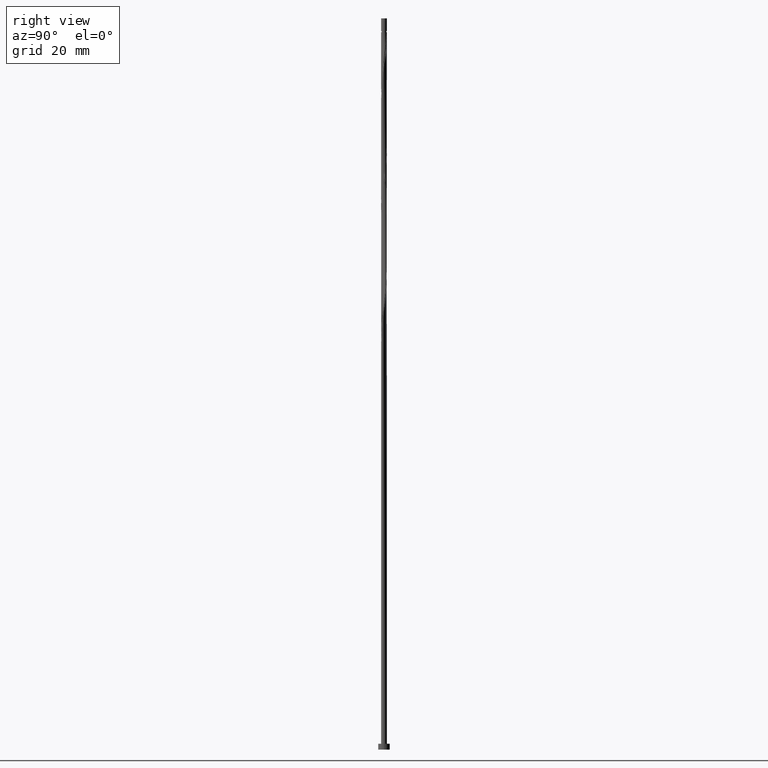
[diagram: clean part render]
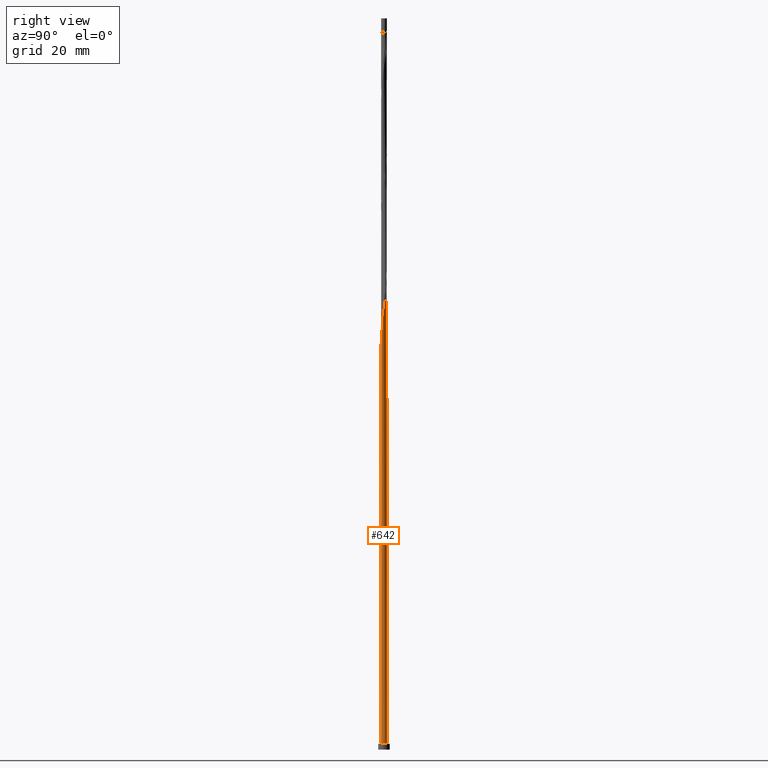
[diagram: same view with one face highlighted and labeled with its STEP entity id]
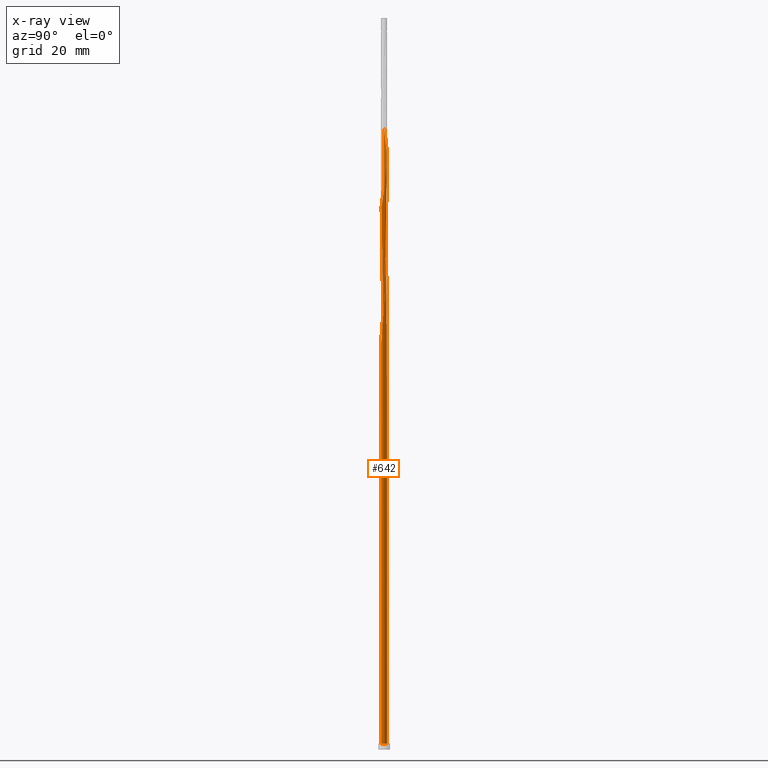
[diagram: x-ray of the same camera — body ghosted, the highlighted face saturated]
A machine part, right view. The second image highlights one B-rep face of the part: STEP entity #642.
The next image is the same camera in x-ray: the body ghosted, the highlighted face saturated — about 0% of this face is hidden behind the body in this view.
In plain terms, the highlighted cylindrical surface (bore or boss wall) has radius 1 mm, axis along (-0, -0, -1).
Its self-contained STEP definition (entity closure, byte-faithful):
#5 = CARTESIAN_POINT ( 'NONE',  ( -0.1626326816669503295, -0.9941297243636999514, 180.3694312571459477 ) ) ;
#12 = ORIENTED_EDGE ( 'NONE', *, *, #198, .T. ) ;
#21 = CARTESIAN_POINT ( 'NONE',  ( 0.2792251842758189939, 0.9602256487233287174, 200.4014825391972749 ) ) ;
#27 = CARTESIAN_POINT ( 'NONE',  ( -1.000000000000000000, 0.000000000000000000, 2.000000000000000000 ) ) ;
#38 = ORIENTED_EDGE ( 'NONE', *, *, #546, .F. ) ;
#39 = CARTESIAN_POINT ( 'NONE',  ( -1.000000000000001554, -6.206714491314109161E-16, 132.0178659535507109 ) ) ;
#57 = VECTOR ( 'NONE', #1188, 1000.000000000000000 ) ;
#58 = DIRECTION ( 'NONE',  ( 0.000000000000000000, 1.000000000000000000, -2.775557561562891351E-14 ) ) ;
#82 = VERTEX_POINT ( 'NONE', #27 ) ;
#87 = CARTESIAN_POINT ( 'NONE',  ( -0.7809622556878470512, -0.6362713675787865508, 133.8950722827869697 ) ) ;
#96 = CARTESIAN_POINT ( 'NONE',  ( -0.1626326816669503295, -0.9941297243636999514, 138.7027645904792621 ) ) ;
#110 = CARTESIAN_POINT ( 'NONE',  ( 0.7988119632698938988, -0.6015807903656001931, 145.9143030520177717 ) ) ;
#123 = CARTESIAN_POINT ( 'NONE',  ( 0.2792251842758189939, 0.9602256487233287174, 158.7348158725305609 ) ) ;
#132 = CARTESIAN_POINT ( 'NONE',  ( -0.9488682001031722990, -0.3156725183365958753, 173.1578927956074949 ) ) ;
#138 = CARTESIAN_POINT ( 'NONE',  ( 0.9672781958313422246, -0.2812760030270856637, 189.9848158725305609 ) ) ;
#139 = AXIS2_PLACEMENT_3D ( 'NONE', #1639, #1235, #58 ) ;
#145 = CARTESIAN_POINT ( 'NONE',  ( -0.3179910309791545986, 0.9558373304210522337, 162.7412261289408377 ) ) ;
#154 = EDGE_CURVE ( 'NONE', #559, #649, #308, .T. ) ;
#162 =( BOUNDED_CURVE ( )  B_SPLINE_CURVE ( 2, ( #325, #1114, #748, #992, #1012, #630, #625, #650, #361, #242, #616, #874, #1137, #1679, #1283, #1671, #1551 ),
 .UNSPECIFIED., .F., .T. ) 
 B_SPLINE_CURVE_WITH_KNOTS ( ( 3, 2, 2, 2, 2, 2, 2, 2, 3 ),
 ( 0.9295271625973828833, 0.9326923076923077094, 0.9423076923076922906, 0.9519230769230768718, 0.9615384615384615641, 0.9711538461538461453, 0.9807692307692307265, 0.9903846153846154188, 1.000000000000000000 ),
 .UNSPECIFIED. ) 
 CURVE ( )  GEOMETRIC_REPRESENTATION_ITEM ( )  RATIONAL_B_SPLINE_CURVE ( ( 0.9061636035682636425, 0.9069090390690521808, 0.9090909090909090606, 0.9024626128164124905, 0.9090909090909090606, 0.9024626128164124905, 0.9090909090909090606, 0.9024626128164124905, 0.9090909090909090606, 0.9024626128164124905, 0.9090909090909090606, 0.9024626128164124905, 0.9090909090909090606, 0.9024626128164124905, 0.9090909090909090606, 0.9024626128164124905, 0.9090909090909090606 ) ) 
 REPRESENTATION_ITEM ( '' )  );
#168 = CARTESIAN_POINT ( 'NONE',  ( -0.9195676458679213905, 0.3929317302953934665, 126.6835338212484743 ) ) ;
#177 = CARTESIAN_POINT ( 'NONE',  ( -0.9195676458679213905, 0.3929317302953934665, 210.0168671545818313 ) ) ;
#184 = DIRECTION ( 'NONE',  ( -1.000000000000000000, 0.000000000000000000, 0.000000000000000000 ) ) ;
#185 = CARTESIAN_POINT ( 'NONE',  ( -0.8718570959045004454, 0.5045874575637019355, 209.2155851032997305 ) ) ;
#194 = VERTEX_POINT ( 'NONE', #318 ) ;
#196 = DIRECTION ( 'NONE',  ( -0.000000000000000000, -0.000000000000000000, -1.000000000000000000 ) ) ;
#198 = EDGE_CURVE ( 'NONE', #299, #390, #1092, .T. ) ;
#200 = DIRECTION ( 'NONE',  ( 0.000000000000000000, 0.000000000000000000, 1.000000000000000000 ) ) ;
#212 = CARTESIAN_POINT ( 'NONE',  ( -0.9871977833283672732, -0.2004590596635320576, 130.6899440776587369 ) ) ;
#222 = CARTESIAN_POINT ( 'NONE',  ( -0.5009084468820621527, -0.8655002760497555458, 136.2989184366330733 ) ) ;
#236 = CARTESIAN_POINT ( 'NONE',  ( -0.9105386168779776579, -0.4308859770096599151, 173.9591748468895105 ) ) ;
#242 = CARTESIAN_POINT ( 'NONE',  ( -0.6059992068794372022, 0.8046789790165538303, 125.8822517699664729 ) ) ;
#243 = CARTESIAN_POINT ( 'NONE',  ( 0.9871977833283672732, 0.2004590596635319188, 151.5232774109920797 ) ) ;
#251 = CARTESIAN_POINT ( 'NONE',  ( -0.5009084468820621527, -0.8655002760497555458, 177.9655851032997873 ) ) ;
#259 = CARTESIAN_POINT ( 'NONE',  ( 0.9672781958313422246, -0.2812760030270856637, 148.3181492058638753 ) ) ;
#269 = CARTESIAN_POINT ( 'NONE',  ( 0.7257668306352880183, -0.6985741231674980067, 145.1130210007356993 ) ) ;
#283 = CARTESIAN_POINT ( 'NONE',  ( -0.08000394386352392695, 1.004162669578944067, 202.8053286930433217 ) ) ;
#289 = CARTESIAN_POINT ( 'NONE',  ( -0.1989974874213394362, 0.9799999999999983169, 120.2732774109920797 ) ) ;
#299 = VERTEX_POINT ( 'NONE', #589 ) ;
#300 = CARTESIAN_POINT ( 'NONE',  ( -0.7257668306352880183, 0.6985741231674977847, 207.6130210007356709 ) ) ;
#302 = CARTESIAN_POINT ( 'NONE',  ( 0.000000000000000000, 0.000000000000000000, 2.000000000000000000 ) ) ;
#308 = LINE ( 'NONE', #834, #445 ) ;
#312 = CARTESIAN_POINT ( 'NONE',  ( 0.7809622556878473842, 0.6362713675787859957, 196.3950722827869129 ) ) ;
#318 = CARTESIAN_POINT ( 'NONE',  ( 1.000000000000000000, 0.000000000000000000, 2.000000000000000000 ) ) ;
#325 = CARTESIAN_POINT ( 'NONE',  ( -1.000000000000001554, -6.206714491314109161E-16, 132.0178659535507109 ) ) ;
#333 = CARTESIAN_POINT ( 'NONE',  ( -0.3179910309791545986, 0.9558373304210522337, 121.0745594622741237 ) ) ;
#336 = CARTESIAN_POINT ( 'NONE',  ( 0.1989974874213394362, -0.9799999999999983169, 141.1066107443254793 ) ) ;
#343 = CARTESIAN_POINT ( 'NONE',  ( -0.9868813993804974594, 0.1614469063091454326, 128.2860979238126049 ) ) ;
#354 = CARTESIAN_POINT ( 'NONE',  ( -0.6934807312836420712, -0.7204751732976698575, 134.6963543340690137 ) ) ;
#356 = EDGE_CURVE ( 'NONE', #82, #194, #1005, .T. ) ;
#361 = CARTESIAN_POINT ( 'NONE',  ( -0.6934807312836421822, 0.7204751732976701906, 126.6835338212485027 ) ) ;
#370 = CARTESIAN_POINT ( 'NONE',  ( 0.7257668306352880183, -0.6985741231674980067, 186.7796876674022997 ) ) ;
#376 = CARTESIAN_POINT ( 'NONE',  ( 0.7809622556878473842, 0.6362713675787859957, 154.7284056161203125 ) ) ;
#385 = CARTESIAN_POINT ( 'NONE',  ( -0.8718570959045004454, 0.5045874575637019355, 167.5489184366331017 ) ) ;
#390 = VERTEX_POINT ( 'NONE', #963 ) ;
#396 = CARTESIAN_POINT ( 'NONE',  ( 0.9195676458679213905, -0.3929317302953934665, 147.5168671545818029 ) ) ;
#397 = AXIS2_PLACEMENT_3D ( 'NONE', #1558, #200, #618 ) ;
#404 = CARTESIAN_POINT ( 'NONE',  ( 0.5009084468820622638, 0.8655002760497554348, 157.1322517699664729 ) ) ;
#414 = CARTESIAN_POINT ( 'NONE',  ( -1.000000000000001332, 3.776374479654925961E-16, 212.6953555351000773 ) ) ;
#418 = CARTESIAN_POINT ( 'NONE',  ( -1.000000000000001554, 8.375325578640631106E-16, 129.3620222017668198 ) ) ;
#430 = EDGE_CURVE ( 'NONE', #649, #390, #162, .T. ) ;
#431 = CARTESIAN_POINT ( 'NONE',  ( 0.04131436890171372167, 0.9991461969713221203, 202.0040466417613061 ) ) ;
#445 = VECTOR ( 'NONE', #1511, 1000.000000000000000 ) ;
#494 = CARTESIAN_POINT ( 'NONE',  ( 0.3179910309791544876, -0.9558373304210522337, 141.9078927956074665 ) ) ;
#510 = CARTESIAN_POINT ( 'NONE',  ( 0.08000394386352403797, -1.004162669578944067, 181.9719953597099789 ) ) ;
#520 = CARTESIAN_POINT ( 'NONE',  ( 1.006484602929652361, -0.04161780959120545131, 149.9207133084279633 ) ) ;
#529 = LINE ( 'NONE', #673, #57 ) ;
#530 = CARTESIAN_POINT ( 'NONE',  ( 0.7988119632698938988, -0.6015807903656001931, 187.5809697186844005 ) ) ;
#536 = CARTESIAN_POINT ( 'NONE',  ( 0.9968411931290097616, 0.07942062503616280356, 192.3886620263766929 ) ) ;
#545 = CARTESIAN_POINT ( 'NONE',  ( 0.5374976352246441103, -0.8519621999464206397, 185.1771235648382401 ) ) ;
#546 = EDGE_CURVE ( 'NONE', #1276, #82, #529, .T. ) ;
#551 = CYLINDRICAL_SURFACE ( 'NONE', #929, 1.000000000000000000 ) ;
#559 = VERTEX_POINT ( 'NONE', #1032 ) ;
#560 = CARTESIAN_POINT ( 'NONE',  ( -0.5374976352246444433, 0.8519621999464206397, 206.0104568981716113 ) ) ;
#567 = CARTESIAN_POINT ( 'NONE',  ( 0.9105386168779777689, 0.4308859770096596375, 194.7925081802228817 ) ) ;
#578 = CARTESIAN_POINT ( 'NONE',  ( -0.9672781958313426687, 0.2812760030270850531, 210.8181492058639321 ) ) ;
#589 = CARTESIAN_POINT ( 'NONE',  ( -0.1989974874213394362, 0.9799999999999982059, 120.2732774109920797 ) ) ;
#591 = AXIS2_PLACEMENT_3D ( 'NONE', #302, #976, #828 ) ;
#616 = CARTESIAN_POINT ( 'NONE',  ( -0.5009084468820619307, 0.8655002760497556569, 125.0809697186844005 ) ) ;
#618 = DIRECTION ( 'NONE',  ( 1.000000000000000000, 0.000000000000000000, 0.000000000000000000 ) ) ;
#625 = CARTESIAN_POINT ( 'NONE',  ( -0.8457504362829123545, 0.5335786722942235105, 128.2860979238126049 ) ) ;
#626 = CARTESIAN_POINT ( 'NONE',  ( -0.04131436890171313187, -0.9991461969713221203, 139.5040466417613345 ) ) ;
#630 = CARTESIAN_POINT ( 'NONE',  ( -0.9105386168779776579, 0.4308859770096601927, 129.0873799750947057 ) ) ;
#640 = CARTESIAN_POINT ( 'NONE',  ( 0.9488682001031727431, 0.3156725183365953757, 152.3245594622740953 ) ) ;
#642 = ADVANCED_FACE ( 'NONE', ( #679 ), #551, .T. ) ;
#649 = VERTEX_POINT ( 'NONE', #39 ) ;
#650 = CARTESIAN_POINT ( 'NONE',  ( -0.7809622556878472732, 0.6362713675787868839, 127.4848158725305467 ) ) ;
#652 = CARTESIAN_POINT ( 'NONE',  ( -0.1989974874213393530, 0.9799999999999983169, 161.9399440776587937 ) ) ;
#659 = CARTESIAN_POINT ( 'NONE',  ( 0.3179910309791544876, -0.9558373304210522337, 183.5745594622741521 ) ) ;
#665 = CARTESIAN_POINT ( 'NONE',  ( 0.9868813993804974594, -0.1614469063091455159, 190.7860979238126049 ) ) ;
#673 = CARTESIAN_POINT ( 'NONE',  ( -1.000000000000000000, 0.000000000000000000, 250.0000000000000000 ) ) ;
#674 = CARTESIAN_POINT ( 'NONE',  ( -0.9968411931290097616, -0.07942062503616315050, 171.5553286930433501 ) ) ;
#679 = FACE_OUTER_BOUND ( 'NONE', #1489, .T. ) ;
#691 = EDGE_CURVE ( 'NONE', #299, #1276, #1334, .T. ) ;
#713 = CARTESIAN_POINT ( 'NONE',  ( -0.4277443331018996320, 0.9038997651837363811, 205.2091748468895389 ) ) ;
#721 = ORIENTED_EDGE ( 'NONE', *, *, #1604, .T. ) ;
#727 = CARTESIAN_POINT ( 'NONE',  ( -0.8457504362829123545, -0.5335786722942231775, 133.0937902315049257 ) ) ;
#748 = CARTESIAN_POINT ( 'NONE',  ( -0.9968411931290099837, 0.07942062503616346969, 131.4912261289407809 ) ) ;
#772 = CARTESIAN_POINT ( 'NONE',  ( -0.6316322329299663974, 0.7752681615569592122, 165.1450722827869697 ) ) ;
#776 = CARTESIAN_POINT ( 'NONE',  ( 0.9105386168779777689, 0.4308859770096596375, 153.1258415135561677 ) ) ;
#784 = CARTESIAN_POINT ( 'NONE',  ( -0.04131436890171313187, -0.9991461969713221203, 181.1707133084279917 ) ) ;
#791 = CARTESIAN_POINT ( 'NONE',  ( -0.8457504362829123545, -0.5335786722942231775, 174.7604568981714976 ) ) ;
#797 = CARTESIAN_POINT ( 'NONE',  ( 0.9968411931290097616, 0.07942062503616280356, 150.7219953597100641 ) ) ;
#812 = ORIENTED_EDGE ( 'NONE', *, *, #1650, .F. ) ;
#813 = CARTESIAN_POINT ( 'NONE',  ( -0.7988119632698941208, 0.6015807903656000821, 125.0809697186844005 ) ) ;
#828 = DIRECTION ( 'NONE',  ( 1.000000000000000000, 0.000000000000000000, 0.000000000000000000 ) ) ;
#834 = CARTESIAN_POINT ( 'NONE',  ( -1.000000000000000000, 0.000000000000000000, 250.0000000000000000 ) ) ;
#850 = CARTESIAN_POINT ( 'NONE',  ( -1.000000000000001110, -0.03977313033677723486, 129.6261931173998221 ) ) ;
#854 =( BOUNDED_CURVE ( )  B_SPLINE_CURVE ( 2, ( #993, #850, #977, #212, #1680, #1528, #727, #87, #354, #1414, #222, #1245, #1659, #96, #626, #1138, #336, #494, #999, #895, #888, #269, #110, #1316, #396, #259, #1435, #520, #797, #243, #640, #776, #1023, #376, #1295, #1593, #404, #1033, #123, #1177, #1704, #1302, #652, #145, #1578, #918, #772, #1568, #1166, #385, #1451, #1154, #903, #1445, #674, #1429, #132, #236, #791, #909, #1585, #1284, #251, #1694, #1190, #5, #784, #510, #1182, #659, #1713, #545, #1051, #370, #530, #1311, #1013, #138, #665, #1717, #536, #1042, #1459, #567, #1368, #312, #938, #1058, #1490, #1617, #21, #1476, #431, #283, #1467, #945, #713, #560, #1066, #300, #1483, #185, #177, #578, #1502, #1336, #414 ),
 .UNSPECIFIED., .F., .T. ) 
 B_SPLINE_CURVE_WITH_KNOTS ( ( 3, 2, 2, 2, 2, 2, 2, 2, 2, 2, 2, 2, 2, 2, 2, 2, 2, 2, 2, 2, 2, 2, 2, 2, 2, 2, 2, 2, 2, 2, 2, 2, 2, 2, 2, 2, 2, 2, 2, 2, 2, 2, 2, 2, 2, 2, 2, 2, 2, 2, 2, 2, 2, 3 ),
 ( 0.05452716259738280002, 0.05769230769230770939, 0.06730769230769229061, 0.07692307692307687184, 0.08653846153846156408, 0.09615384615384614531, 0.1057692307692307265, 0.1153846153846154188, 0.1250000000000000000, 0.1346153846153845812, 0.1442307692307692735, 0.1538461538461538547, 0.1634615384615384359, 0.1730769230769231282, 0.1826923076923077094, 0.1923076923076922906, 0.2019230769230768718, 0.2115384615384615641, 0.2211538461538461453, 0.2307692307692307265, 0.2403846153846154188, 0.2500000000000000000, 0.2596153846153845812, 0.2692307692307692735, 0.2788461538461538547, 0.2884615384615384359, 0.2980769230769231282, 0.3076923076923077094, 0.3173076923076922906, 0.3269230769230768718, 0.3365384615384615641, 0.3461538461538461453, 0.3557692307692307265, 0.3653846153846154188, 0.3750000000000000000, 0.3846153846153845812, 0.3942307692307692735, 0.4038461538461538547, 0.4134615384615384359, 0.4230769230769231282, 0.4326923076923077094, 0.4423076923076922906, 0.4519230769230768718, 0.4615384615384615641, 0.4711538461538461453, 0.4807692307692307265, 0.4903846153846154188, 0.5000000000000000000, 0.5096153846153845812, 0.5192307692307691624, 0.5288461538461538547, 0.5384615384615384359, 0.5480769230769231282, 0.5545271625973826612 ),
 .UNSPECIFIED. ) 
 CURVE ( )  GEOMETRIC_REPRESENTATION_ITEM ( )  RATIONAL_B_SPLINE_CURVE ( ( 0.9061636035682738566, 0.9069090390690623948, 0.9090909090909192747, 0.9024626128164228156, 0.9090909090909192747, 0.9024626128164228156, 0.9090909090909192747, 0.9024626128164228156, 0.9090909090909192747, 0.9024626128164228156, 0.9090909090909192747, 0.9024626128164228156, 0.9090909090909192747, 0.9024626128164228156, 0.9090909090909192747, 0.9024626128164228156, 0.9090909090909192747, 0.9024626128164228156, 0.9090909090909192747, 0.9024626128164228156, 0.9090909090909192747, 0.9024626128164228156, 0.9090909090909192747, 0.9024626128164228156, 0.9090909090909192747, 0.9024626128164228156, 0.9090909090909192747, 0.9024626128164228156, 0.9090909090909192747, 0.9024626128164228156, 0.9090909090909192747, 0.9024626128164228156, 0.9090909090909192747, 0.9024626128164228156, 0.9090909090909192747, 0.9024626128164228156, 0.9090909090909192747, 0.9024626128164228156, 0.9090909090909192747, 0.9024626128164228156, 0.9090909090909192747, 0.9024626128164228156, 0.9090909090909192747, 0.9024626128164228156, 0.9090909090909192747, 0.9024626128164228156, 0.9090909090909192747, 0.9024626128164228156, 0.9090909090909192747, 0.9024626128164228156, 0.9090909090909192747, 0.9024626128164228156, 0.9090909090909192747, 0.9024626128164228156, 0.9090909090909192747, 0.9024626128164228156, 0.9090909090909192747, 0.9024626128164228156, 0.9090909090909192747, 0.9024626128164228156, 0.9090909090909192747, 0.9024626128164228156, 0.9090909090909192747, 0.9024626128164228156, 0.9090909090909192747, 0.9024626128164228156, 0.9090909090909192747, 0.9024626128164228156, 0.9090909090909192747, 0.9024626128164228156, 0.9090909090909192747, 0.9024626128164228156, 0.9090909090909192747, 0.9024626128164228156, 0.9090909090909192747, 0.9024626128164228156, 0.9090909090909192747, 0.9024626128164228156, 0.9090909090909192747, 0.9024626128164228156, 0.9090909090909192747, 0.9024626128164228156, 0.9090909090909192747, 0.9024626128164228156, 0.9090909090909192747, 0.9024626128164228156, 0.9090909090909192747, 0.9024626128164228156, 0.9090909090909192747, 0.9024626128164228156, 0.9090909090909192747, 0.9024626128164228156, 0.9090909090909192747, 0.9024626128164228156, 0.9090909090909192747, 0.9024626128164228156, 0.9090909090909192747, 0.9024626128164228156, 0.9090909090909192747, 0.9024626128164228156, 0.9090909090909192747, 0.9024626128164228156, 0.9090909090909192747, 0.9024626128164228156, 0.9090909090909192747, 0.9046444828382798065, 0.9061636035682737456 ) ) 
 REPRESENTATION_ITEM ( '' )  );
#874 = CARTESIAN_POINT ( 'NONE',  ( -0.3958176868846866037, 0.9263215730829580385, 124.2796876674023707 ) ) ;
#888 = CARTESIAN_POINT ( 'NONE',  ( 0.6316322329299662863, -0.7752681615569592122, 144.3117389494536269 ) ) ;
#895 = CARTESIAN_POINT ( 'NONE',  ( 0.5374976352246441103, -0.8519621999464206397, 143.5104568981716113 ) ) ;
#903 = CARTESIAN_POINT ( 'NONE',  ( -0.9868813993804974594, 0.1614469063091454326, 169.9527645904792337 ) ) ;
#909 = CARTESIAN_POINT ( 'NONE',  ( -0.7809622556878470512, -0.6362713675787865508, 175.5617389494535416 ) ) ;
#918 = CARTESIAN_POINT ( 'NONE',  ( -0.5374976352246444433, 0.8519621999464206397, 164.3437902315048973 ) ) ;
#929 = AXIS2_PLACEMENT_3D ( 'NONE', #1644, #196, #184 ) ;
#937 = CARTESIAN_POINT ( 'NONE',  ( -0.6316322329299663974, 0.7752681615569592122, 123.4784056161203267 ) ) ;
#938 = CARTESIAN_POINT ( 'NONE',  ( 0.6934807312836421822, 0.7204751732976698575, 197.1963543340689853 ) ) ;
#943 = ORIENTED_EDGE ( 'NONE', *, *, #546, .T. ) ;
#945 = CARTESIAN_POINT ( 'NONE',  ( -0.3179910309791545986, 0.9558373304210522337, 204.4078927956074665 ) ) ;
#963 = CARTESIAN_POINT ( 'NONE',  ( 0.1989974874213399914, 0.9799999999999982059, 120.2732774109920797 ) ) ;
#976 = DIRECTION ( 'NONE',  ( 0.000000000000000000, 0.000000000000000000, 1.000000000000000000 ) ) ;
#977 = CARTESIAN_POINT ( 'NONE',  ( -0.9968411931290097616, -0.07942062503616315050, 129.8886620263767213 ) ) ;
#992 = CARTESIAN_POINT ( 'NONE',  ( -0.9871977833283673842, 0.2004590596635321964, 130.6899440776587653 ) ) ;
#993 = CARTESIAN_POINT ( 'NONE',  ( -1.000000000000001554, 8.375325578640630120E-16, 129.3620222017668198 ) ) ;
#999 = CARTESIAN_POINT ( 'NONE',  ( 0.4277443331018992434, -0.9038997651837366032, 142.7091748468895389 ) ) ;
#1005 = CIRCLE ( 'NONE', #591, 1.000000000000000000 ) ;
#1012 = CARTESIAN_POINT ( 'NONE',  ( -0.9488682001031725211, 0.3156725183365962084, 129.8886620263767213 ) ) ;
#1013 = CARTESIAN_POINT ( 'NONE',  ( 0.9195676458679213905, -0.3929317302953934665, 189.1835338212484885 ) ) ;
#1023 = CARTESIAN_POINT ( 'NONE',  ( 0.8457504362829123545, 0.5335786722942232885, 153.9271235648382117 ) ) ;
#1032 = CARTESIAN_POINT ( 'NONE',  ( -1.000000000000001332, 3.776374479654925961E-16, 212.6953555351000773 ) ) ;
#1033 = CARTESIAN_POINT ( 'NONE',  ( 0.3958176868846867702, 0.9263215730829578165, 157.9335338212484885 ) ) ;
#1042 = CARTESIAN_POINT ( 'NONE',  ( 0.9871977833283672732, 0.2004590596635319188, 193.1899440776587653 ) ) ;
#1051 = CARTESIAN_POINT ( 'NONE',  ( 0.6316322329299662863, -0.7752681615569592122, 185.9784056161202841 ) ) ;
#1058 = CARTESIAN_POINT ( 'NONE',  ( 0.6059992068794377573, 0.8046789790165528311, 197.9976363853510577 ) ) ;
#1066 = CARTESIAN_POINT ( 'NONE',  ( -0.6316322329299663974, 0.7752681615569592122, 206.8117389494535985 ) ) ;
#1092 = CIRCLE ( 'NONE', #139, 1.000000000000000000 ) ;
#1114 = CARTESIAN_POINT ( 'NONE',  ( -1.000000000000001332, 0.03977313033677852550, 131.7536950379177085 ) ) ;
#1137 = CARTESIAN_POINT ( 'NONE',  ( -0.2792251842758183833, 0.9602256487233289395, 123.4784056161202841 ) ) ;
#1138 = CARTESIAN_POINT ( 'NONE',  ( 0.08000394386352403797, -1.004162669578944067, 140.3053286930433501 ) ) ;
#1154 = CARTESIAN_POINT ( 'NONE',  ( -0.9672781958313426687, 0.2812760030270850531, 169.1514825391972465 ) ) ;
#1164 = ORIENTED_EDGE ( 'NONE', *, *, #154, .F. ) ;
#1166 = CARTESIAN_POINT ( 'NONE',  ( -0.7988119632698941208, 0.6015807903656000821, 166.7476363853510577 ) ) ;
#1177 = CARTESIAN_POINT ( 'NONE',  ( 0.1626326816669504405, 0.9941297243636999514, 159.5360979238126049 ) ) ;
#1182 = CARTESIAN_POINT ( 'NONE',  ( 0.1989974874213394362, -0.9799999999999983169, 182.7732774109921365 ) ) ;
#1188 = DIRECTION ( 'NONE',  ( -0.000000000000000000, -0.000000000000000000, -1.000000000000000000 ) ) ;
#1190 = CARTESIAN_POINT ( 'NONE',  ( -0.2792251842758185498, -0.9602256487233289395, 179.5681492058638469 ) ) ;
#1217 = ORIENTED_EDGE ( 'NONE', *, *, #430, .F. ) ;
#1235 = DIRECTION ( 'NONE',  ( 2.234078735489046958E-28, -3.469446951953386997E-14, -1.000000000000000000 ) ) ;
#1245 = CARTESIAN_POINT ( 'NONE',  ( -0.3958176868846866592, -0.9263215730829578165, 137.1002004879151173 ) ) ;
#1250 = CARTESIAN_POINT ( 'NONE',  ( -0.5374976352246444433, 0.8519621999464206397, 122.6771235648382401 ) ) ;
#1276 = VERTEX_POINT ( 'NONE', #418 ) ;
#1283 = CARTESIAN_POINT ( 'NONE',  ( -0.04131436890171278492, 0.9991461969713223423, 121.8758415135561961 ) ) ;
#1284 = CARTESIAN_POINT ( 'NONE',  ( -0.6059992068794376463, -0.8046789790165532752, 177.1643030520177433 ) ) ;
#1292 = CARTESIAN_POINT ( 'NONE',  ( -1.000000000000001554, 0.08125643853703666541, 128.8223214644185362 ) ) ;
#1295 = CARTESIAN_POINT ( 'NONE',  ( 0.6934807312836421822, 0.7204751732976698575, 155.5296876674023281 ) ) ;
#1302 = CARTESIAN_POINT ( 'NONE',  ( -0.08000394386352392695, 1.004162669578944067, 161.1386620263767213 ) ) ;
#1311 = CARTESIAN_POINT ( 'NONE',  ( 0.8718570959045004454, -0.5045874575637021575, 188.3822517699665013 ) ) ;
#1316 = CARTESIAN_POINT ( 'NONE',  ( 0.8718570959045004454, -0.5045874575637021575, 146.7155851032997873 ) ) ;
#1334 =( BOUNDED_CURVE ( )  B_SPLINE_CURVE ( 2, ( #289, #333, #1389, #1250, #937, #1481, #813, #1341, #168, #1624, #343, #1292, #1677 ),
 .UNSPECIFIED., .F., .T. ) 
 B_SPLINE_CURVE_WITH_KNOTS ( ( 3, 2, 2, 2, 2, 2, 3 ),
 ( 0.000000000000000000, 0.009615384615384581224, 0.01923076923076927694, 0.02884615384615385469, 0.03846153846153844286, 0.04807692307692312816, 0.05452716259738280002 ),
 .UNSPECIFIED. ) 
 CURVE ( )  GEOMETRIC_REPRESENTATION_ITEM ( )  RATIONAL_B_SPLINE_CURVE ( ( 0.9090909090909192747, 0.9024626128164228156, 0.9090909090909192747, 0.9024626128164228156, 0.9090909090909192747, 0.9024626128164228156, 0.9090909090909192747, 0.9024626128164228156, 0.9090909090909192747, 0.9024626128164228156, 0.9090909090909192747, 0.9046444828382798065, 0.9061636035682738566 ) ) 
 REPRESENTATION_ITEM ( '' )  );
#1336 = CARTESIAN_POINT ( 'NONE',  ( -1.000000000000001554, 0.08125643853703841402, 212.1556547977518505 ) ) ;
#1341 = CARTESIAN_POINT ( 'NONE',  ( -0.8718570959045004454, 0.5045874575637019355, 125.8822517699664587 ) ) ;
#1368 = CARTESIAN_POINT ( 'NONE',  ( 0.8457504362829123545, 0.5335786722942232885, 195.5937902315049257 ) ) ;
#1389 = CARTESIAN_POINT ( 'NONE',  ( -0.4277443331018996320, 0.9038997651837363811, 121.8758415135561819 ) ) ;
#1414 = CARTESIAN_POINT ( 'NONE',  ( -0.6059992068794376463, -0.8046789790165532752, 135.4976363853510577 ) ) ;
#1429 = CARTESIAN_POINT ( 'NONE',  ( -0.9871977833283672732, -0.2004590596635320576, 172.3566107443254509 ) ) ;
#1435 = CARTESIAN_POINT ( 'NONE',  ( 0.9868813993804974594, -0.1614469063091455159, 149.1194312571459477 ) ) ;
#1445 = CARTESIAN_POINT ( 'NONE',  ( -1.006484602929652361, 0.04161780959120552764, 170.7540466417612777 ) ) ;
#1450 = ORIENTED_EDGE ( 'NONE', *, *, #356, .T. ) ;
#1451 = CARTESIAN_POINT ( 'NONE',  ( -0.9195676458679213905, 0.3929317302953934665, 168.3502004879151741 ) ) ;
#1459 = CARTESIAN_POINT ( 'NONE',  ( 0.9488682001031727431, 0.3156725183365953757, 193.9912261289408377 ) ) ;
#1467 = CARTESIAN_POINT ( 'NONE',  ( -0.1989974874213393530, 0.9799999999999983169, 203.6066107443254225 ) ) ;
#1476 = CARTESIAN_POINT ( 'NONE',  ( 0.1626326816669504405, 0.9941297243636999514, 201.2027645904792621 ) ) ;
#1481 = CARTESIAN_POINT ( 'NONE',  ( -0.7257668306352880183, 0.6985741231674977847, 124.2796876674023139 ) ) ;
#1483 = CARTESIAN_POINT ( 'NONE',  ( -0.7988119632698941208, 0.6015807903656000821, 208.4143030520177149 ) ) ;
#1489 = EDGE_LOOP ( 'NONE', ( #1164, #812, #943, #1450, #721, #38, #1654, #12, #1217 ) ) ;
#1490 = CARTESIAN_POINT ( 'NONE',  ( 0.5009084468820622638, 0.8655002760497554348, 198.7989184366331017 ) ) ;
#1502 = CARTESIAN_POINT ( 'NONE',  ( -0.9868813993804974594, 0.1614469063091454326, 211.6194312571459193 ) ) ;
#1511 = DIRECTION ( 'NONE',  ( -0.000000000000000000, -0.000000000000000000, -1.000000000000000000 ) ) ;
#1528 = CARTESIAN_POINT ( 'NONE',  ( -0.9105386168779776579, -0.4308859770096599151, 132.2925081802228533 ) ) ;
#1551 = CARTESIAN_POINT ( 'NONE',  ( 0.1989974874213400191, 0.9799999999999982059, 120.2732774109920797 ) ) ;
#1558 = CARTESIAN_POINT ( 'NONE',  ( 0.000000000000000000, 0.000000000000000000, 2.000000000000000000 ) ) ;
#1568 = CARTESIAN_POINT ( 'NONE',  ( -0.7257668306352880183, 0.6985741231674977847, 165.9463543340690421 ) ) ;
#1578 = CARTESIAN_POINT ( 'NONE',  ( -0.4277443331018996320, 0.9038997651837363811, 163.5425081802228817 ) ) ;
#1585 = CARTESIAN_POINT ( 'NONE',  ( -0.6934807312836420712, -0.7204751732976698575, 176.3630210007356993 ) ) ;
#1593 = CARTESIAN_POINT ( 'NONE',  ( 0.6059992068794377573, 0.8046789790165528311, 156.3309697186843152 ) ) ;
#1604 = EDGE_CURVE ( 'NONE', #194, #82, #1695, .T. ) ;
#1617 = CARTESIAN_POINT ( 'NONE',  ( 0.3958176868846867702, 0.9263215730829578165, 199.6002004879152025 ) ) ;
#1624 = CARTESIAN_POINT ( 'NONE',  ( -0.9672781958313426687, 0.2812760030270850531, 127.4848158725305467 ) ) ;
#1639 = CARTESIAN_POINT ( 'NONE',  ( 0.000000000000000000, 0.000000000000000000, 120.2732774109921081 ) ) ;
#1644 = CARTESIAN_POINT ( 'NONE',  ( 0.000000000000000000, 0.000000000000000000, 250.0000000000000000 ) ) ;
#1650 = EDGE_CURVE ( 'NONE', #1276, #559, #854, .T. ) ;
#1654 = ORIENTED_EDGE ( 'NONE', *, *, #691, .F. ) ;
#1659 = CARTESIAN_POINT ( 'NONE',  ( -0.2792251842758185498, -0.9602256487233289395, 137.9014825391972181 ) ) ;
#1671 = CARTESIAN_POINT ( 'NONE',  ( 0.08000394386352449594, 1.004162669578944511, 121.0745594622741379 ) ) ;
#1677 = CARTESIAN_POINT ( 'NONE',  ( -1.000000000000001554, 8.375325578640630120E-16, 129.3620222017668198 ) ) ;
#1679 = CARTESIAN_POINT ( 'NONE',  ( -0.1626326816669499686, 0.9941297243637001735, 122.6771235648382685 ) ) ;
#1680 = CARTESIAN_POINT ( 'NONE',  ( -0.9488682001031722990, -0.3156725183365958753, 131.4912261289407809 ) ) ;
#1694 = CARTESIAN_POINT ( 'NONE',  ( -0.3958176868846866592, -0.9263215730829578165, 178.7668671545818313 ) ) ;
#1695 = CIRCLE ( 'NONE', #397, 1.000000000000000000 ) ;
#1704 = CARTESIAN_POINT ( 'NONE',  ( 0.04131436890171372167, 0.9991461969713221203, 160.3373799750945921 ) ) ;
#1713 = CARTESIAN_POINT ( 'NONE',  ( 0.4277443331018992434, -0.9038997651837366032, 184.3758415135562245 ) ) ;
#1717 = CARTESIAN_POINT ( 'NONE',  ( 1.006484602929652361, -0.04161780959120545131, 191.5873799750945921 ) ) ;